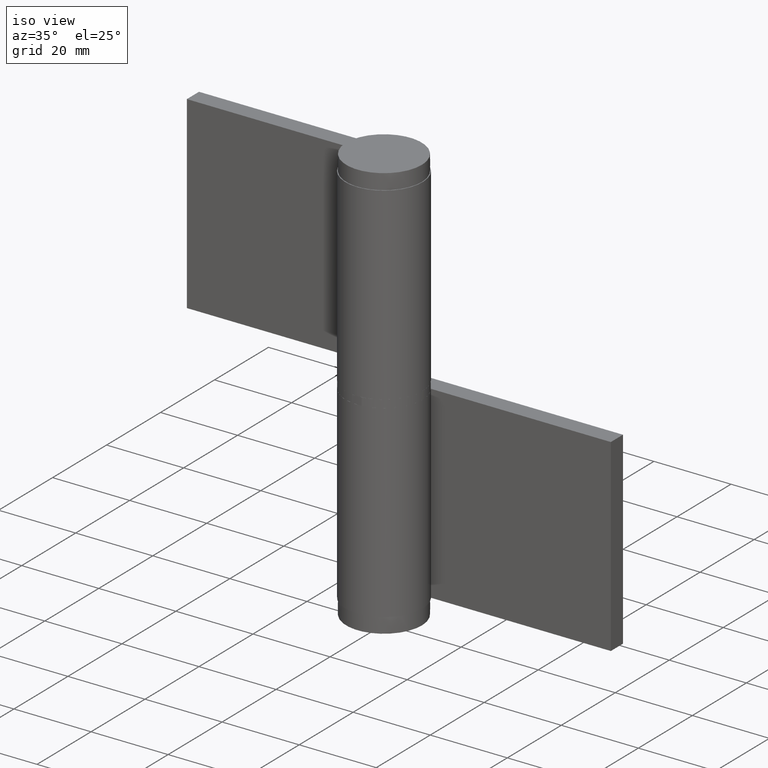
[diagram: clean part render]
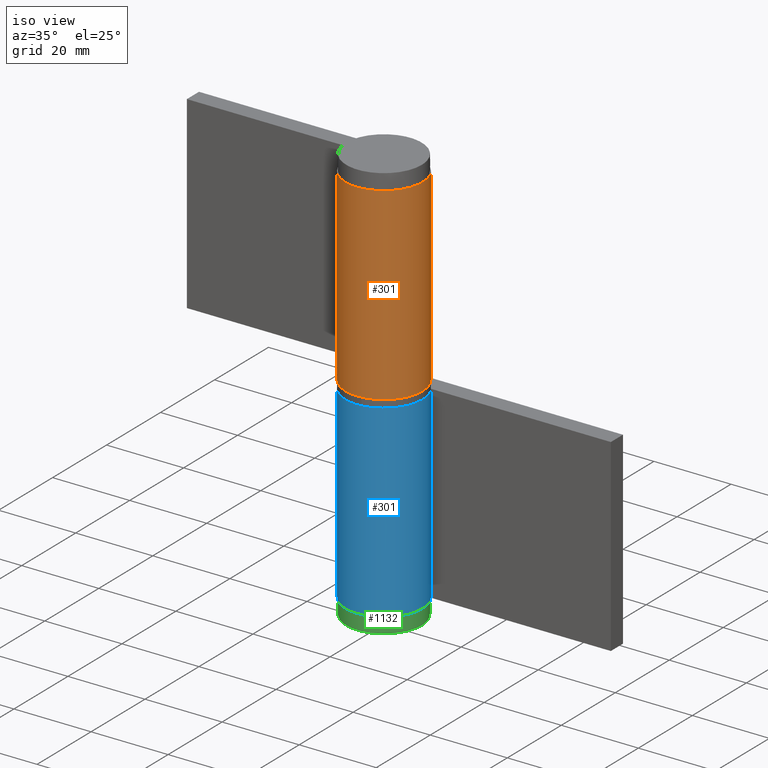
[diagram: same view with three faces highlighted in distinct colors, each labeled with its STEP entity id]
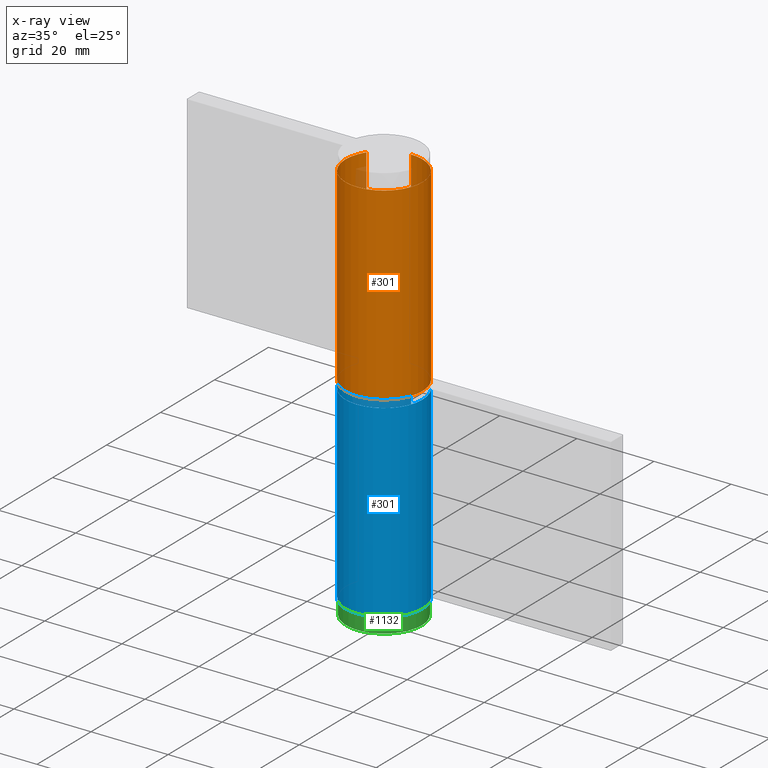
[diagram: x-ray of the same camera — body ghosted, the three highlighted faces saturated]
A machine part, iso view with three faces highlighted in distinct colors.
The next image is the same camera in x-ray (body ghosted, the three faces saturated) — at least one of them is partly hidden behind the body in this view.
Their STEP definitions:

[orange] entity #301 — the highlighted face is a freeform B-spline surface patch.
#86=CARTESIAN_POINT('',(8.384360440725340,5.450000000000000,0.0));
#87=VERTEX_POINT('',#86);
#93=CARTESIAN_POINT('',(0.0,10.0,0.0));
#94=VERTEX_POINT('',#93);
#95=CARTESIAN_POINT('',(8.384360440725336,5.450000000000003,0.0));
#96=CARTESIAN_POINT('',(12.623722496663076,-1.071897158847048,0.0));
#97=CARTESIAN_POINT('',(7.345416193928744,-6.785636369418080,0.0));
#98=CARTESIAN_POINT('',(2.067109891194402,-12.499375579989119,0.0));
#99=CARTESIAN_POINT('',(-4.769696007084729,-8.789197915623474,0.0));
#100=CARTESIAN_POINT('',(-11.606501905363862,-5.079020251257827,0.0));
#101=CARTESIAN_POINT('',(-9.692573939780772,2.460489874371092,0.0));
#102=CARTESIAN_POINT('',(-7.778645974197686,10.0,0.0));
#103=CARTESIAN_POINT('',(0.0,10.0,0.0));
#111=(BOUNDED_CURVE()B_SPLINE_CURVE(2,(#95,#96,#97,#98,#99,#100,#101,#102,#103),.UNSPECIFIED.,.F.,.U.)B_SPLINE_CURVE_WITH_KNOTS((3,2,2,2,3),(0.0,0.250000000000000,0.500000000000000,0.750000000000000,1.0),.UNSPECIFIED.)CURVE()GEOMETRIC_REPRESENTATION_ITEM()RATIONAL_B_SPLINE_CURVE((1.0,0.789319006307687,1.0,0.789319006307687,1.0,0.789319006307687,1.0,0.789319006307687,1.0))REPRESENTATION_ITEM(''));
#112=EDGE_CURVE('',#87,#94,#111,.T.);
#136=CARTESIAN_POINT('',(0.0,10.0,49.0));
#137=VERTEX_POINT('',#136);
#143=CARTESIAN_POINT('',(8.384360440725340,5.450000000000000,49.0));
#144=VERTEX_POINT('',#143);
#145=CARTESIAN_POINT('',(8.384360440725336,5.450000000000003,49.0));
#146=CARTESIAN_POINT('',(12.623722496663076,-1.071897158847048,49.0));
#147=CARTESIAN_POINT('',(7.345416193928744,-6.785636369418080,49.0));
#148=CARTESIAN_POINT('',(2.067109891194402,-12.499375579989119,49.0));
#149=CARTESIAN_POINT('',(-4.769696007084729,-8.789197915623474,49.0));
#150=CARTESIAN_POINT('',(-11.606501905363862,-5.079020251257827,49.0));
#151=CARTESIAN_POINT('',(-9.692573939780772,2.460489874371092,49.0));
#152=CARTESIAN_POINT('',(-7.778645974197686,10.0,49.0));
#153=CARTESIAN_POINT('',(0.0,10.0,49.0));
#161=(BOUNDED_CURVE()B_SPLINE_CURVE(2,(#145,#146,#147,#148,#149,#150,#151,#152,#153),.UNSPECIFIED.,.F.,.U.)B_SPLINE_CURVE_WITH_KNOTS((3,2,2,2,3),(0.0,0.250000000000000,0.500000000000000,0.750000000000000,1.0),.UNSPECIFIED.)CURVE()GEOMETRIC_REPRESENTATION_ITEM()RATIONAL_B_SPLINE_CURVE((1.0,0.789319006307687,1.0,0.789319006307687,1.0,0.789319006307687,1.0,0.789319006307687,1.0))REPRESENTATION_ITEM(''));
#162=EDGE_CURVE('',#144,#137,#161,.T.);
#261=CARTESIAN_POINT('',(8.384360440725340,5.450000000000000,49.0));
#262=CARTESIAN_POINT('',(8.384360440725340,5.450000000000000,0.0));
#263=QUASI_UNIFORM_CURVE('',1,(#261,#262),.UNSPECIFIED.,.F.,.U.);
#264=EDGE_CURVE('',#144,#87,#263,.T.);
#269=CARTESIAN_POINT('',(0.087265354983731,9.999619230641709,50.225000000000009));
#270=CARTESIAN_POINT('',(0.087265354983731,9.999619230641709,-1.255625000000002));
#271=CARTESIAN_POINT('',(-12.334946620419215,10.108026232219819,50.225000000000009));
#272=CARTESIAN_POINT('',(-12.334946620419215,10.108026232219819,-1.255625000000002));
#273=CARTESIAN_POINT('',(-9.787482521324137,-2.050654991648877,50.225000000000009));
#274=CARTESIAN_POINT('',(-9.787482521324137,-2.050654991648877,-1.255625000000002));
#275=CARTESIAN_POINT('',(-7.240018422229057,-14.209336215517574,50.225000000000009));
#276=CARTESIAN_POINT('',(-7.240018422229057,-14.209336215517574,-1.255625000000002));
#277=CARTESIAN_POINT('',(4.093923145260922,-9.123584453530139,50.225000000000009));
#278=CARTESIAN_POINT('',(4.093923145260922,-9.123584453530139,-1.255625000000002));
#279=CARTESIAN_POINT('',(15.427864712750901,-4.037832691542703,50.225000000000009));
#280=CARTESIAN_POINT('',(15.427864712750901,-4.037832691542703,-1.255625000000002));
#281=CARTESIAN_POINT('',(8.038568606172175,5.948227867513404,50.225000000000009));
#282=CARTESIAN_POINT('',(8.038568606172175,5.948227867513404,-1.255625000000002));
#290=(BOUNDED_SURFACE()B_SPLINE_SURFACE(1,2,((#269,#271,#273,#275,#277,#279,#281),(#270,#272,#274,#276,#278,#280,#282)),.UNSPECIFIED.,.F.,.F.,.U.)B_SPLINE_SURFACE_WITH_KNOTS((2,2),(3,2,2,3),(0.0,51.480625000000011),(0.0,19.150484318994121,38.300968637988248,57.451452956982372),.UNSPECIFIED.)GEOMETRIC_REPRESENTATION_ITEM()RATIONAL_B_SPLINE_SURFACE(((1.0,0.627057105746662,1.0,0.627057105746662,1.0,0.627057105746662,1.0),(1.0,0.627057105746662,1.0,0.627057105746662,1.0,0.627057105746662,1.0)))REPRESENTATION_ITEM('')SURFACE());
#291=ORIENTED_EDGE('',*,*,#112,.F.);
#292=ORIENTED_EDGE('',*,*,#264,.F.);
#293=ORIENTED_EDGE('',*,*,#162,.T.);
#294=CARTESIAN_POINT('',(0.0,10.0,49.0));
#295=CARTESIAN_POINT('',(0.0,10.0,0.0));
#296=QUASI_UNIFORM_CURVE('',1,(#294,#295),.UNSPECIFIED.,.F.,.U.);
#297=EDGE_CURVE('',#137,#94,#296,.T.);
#298=ORIENTED_EDGE('',*,*,#297,.T.);
#299=EDGE_LOOP('',(#291,#292,#293,#298));
#300=FACE_OUTER_BOUND('',#299,.T.);
#301=ADVANCED_FACE('',(#300),#290,.T.);

[blue] entity #301 — the highlighted face is a freeform B-spline surface patch.
#86=CARTESIAN_POINT('',(8.384360440725340,5.450000000000000,0.0));
#87=VERTEX_POINT('',#86);
#93=CARTESIAN_POINT('',(0.0,10.0,0.0));
#94=VERTEX_POINT('',#93);
#95=CARTESIAN_POINT('',(8.384360440725336,5.450000000000003,0.0));
#96=CARTESIAN_POINT('',(12.623722496663076,-1.071897158847048,0.0));
#97=CARTESIAN_POINT('',(7.345416193928744,-6.785636369418080,0.0));
#98=CARTESIAN_POINT('',(2.067109891194402,-12.499375579989119,0.0));
#99=CARTESIAN_POINT('',(-4.769696007084729,-8.789197915623474,0.0));
#100=CARTESIAN_POINT('',(-11.606501905363862,-5.079020251257827,0.0));
#101=CARTESIAN_POINT('',(-9.692573939780772,2.460489874371092,0.0));
#102=CARTESIAN_POINT('',(-7.778645974197686,10.0,0.0));
#103=CARTESIAN_POINT('',(0.0,10.0,0.0));
#111=(BOUNDED_CURVE()B_SPLINE_CURVE(2,(#95,#96,#97,#98,#99,#100,#101,#102,#103),.UNSPECIFIED.,.F.,.U.)B_SPLINE_CURVE_WITH_KNOTS((3,2,2,2,3),(0.0,0.250000000000000,0.500000000000000,0.750000000000000,1.0),.UNSPECIFIED.)CURVE()GEOMETRIC_REPRESENTATION_ITEM()RATIONAL_B_SPLINE_CURVE((1.0,0.789319006307687,1.0,0.789319006307687,1.0,0.789319006307687,1.0,0.789319006307687,1.0))REPRESENTATION_ITEM(''));
#112=EDGE_CURVE('',#87,#94,#111,.T.);
#136=CARTESIAN_POINT('',(0.0,10.0,49.0));
#137=VERTEX_POINT('',#136);
#143=CARTESIAN_POINT('',(8.384360440725340,5.450000000000000,49.0));
#144=VERTEX_POINT('',#143);
#145=CARTESIAN_POINT('',(8.384360440725336,5.450000000000003,49.0));
#146=CARTESIAN_POINT('',(12.623722496663076,-1.071897158847048,49.0));
#147=CARTESIAN_POINT('',(7.345416193928744,-6.785636369418080,49.0));
#148=CARTESIAN_POINT('',(2.067109891194402,-12.499375579989119,49.0));
#149=CARTESIAN_POINT('',(-4.769696007084729,-8.789197915623474,49.0));
#150=CARTESIAN_POINT('',(-11.606501905363862,-5.079020251257827,49.0));
#151=CARTESIAN_POINT('',(-9.692573939780772,2.460489874371092,49.0));
#152=CARTESIAN_POINT('',(-7.778645974197686,10.0,49.0));
#153=CARTESIAN_POINT('',(0.0,10.0,49.0));
#161=(BOUNDED_CURVE()B_SPLINE_CURVE(2,(#145,#146,#147,#148,#149,#150,#151,#152,#153),.UNSPECIFIED.,.F.,.U.)B_SPLINE_CURVE_WITH_KNOTS((3,2,2,2,3),(0.0,0.250000000000000,0.500000000000000,0.750000000000000,1.0),.UNSPECIFIED.)CURVE()GEOMETRIC_REPRESENTATION_ITEM()RATIONAL_B_SPLINE_CURVE((1.0,0.789319006307687,1.0,0.789319006307687,1.0,0.789319006307687,1.0,0.789319006307687,1.0))REPRESENTATION_ITEM(''));
#162=EDGE_CURVE('',#144,#137,#161,.T.);
#261=CARTESIAN_POINT('',(8.384360440725340,5.450000000000000,49.0));
#262=CARTESIAN_POINT('',(8.384360440725340,5.450000000000000,0.0));
#263=QUASI_UNIFORM_CURVE('',1,(#261,#262),.UNSPECIFIED.,.F.,.U.);
#264=EDGE_CURVE('',#144,#87,#263,.T.);
#269=CARTESIAN_POINT('',(0.087265354983731,9.999619230641709,50.225000000000009));
#270=CARTESIAN_POINT('',(0.087265354983731,9.999619230641709,-1.255625000000002));
#271=CARTESIAN_POINT('',(-12.334946620419215,10.108026232219819,50.225000000000009));
#272=CARTESIAN_POINT('',(-12.334946620419215,10.108026232219819,-1.255625000000002));
#273=CARTESIAN_POINT('',(-9.787482521324137,-2.050654991648877,50.225000000000009));
#274=CARTESIAN_POINT('',(-9.787482521324137,-2.050654991648877,-1.255625000000002));
#275=CARTESIAN_POINT('',(-7.240018422229057,-14.209336215517574,50.225000000000009));
#276=CARTESIAN_POINT('',(-7.240018422229057,-14.209336215517574,-1.255625000000002));
#277=CARTESIAN_POINT('',(4.093923145260922,-9.123584453530139,50.225000000000009));
#278=CARTESIAN_POINT('',(4.093923145260922,-9.123584453530139,-1.255625000000002));
#279=CARTESIAN_POINT('',(15.427864712750901,-4.037832691542703,50.225000000000009));
#280=CARTESIAN_POINT('',(15.427864712750901,-4.037832691542703,-1.255625000000002));
#281=CARTESIAN_POINT('',(8.038568606172175,5.948227867513404,50.225000000000009));
#282=CARTESIAN_POINT('',(8.038568606172175,5.948227867513404,-1.255625000000002));
#290=(BOUNDED_SURFACE()B_SPLINE_SURFACE(1,2,((#269,#271,#273,#275,#277,#279,#281),(#270,#272,#274,#276,#278,#280,#282)),.UNSPECIFIED.,.F.,.F.,.U.)B_SPLINE_SURFACE_WITH_KNOTS((2,2),(3,2,2,3),(0.0,51.480625000000011),(0.0,19.150484318994121,38.300968637988248,57.451452956982372),.UNSPECIFIED.)GEOMETRIC_REPRESENTATION_ITEM()RATIONAL_B_SPLINE_SURFACE(((1.0,0.627057105746662,1.0,0.627057105746662,1.0,0.627057105746662,1.0),(1.0,0.627057105746662,1.0,0.627057105746662,1.0,0.627057105746662,1.0)))REPRESENTATION_ITEM('')SURFACE());
#291=ORIENTED_EDGE('',*,*,#112,.F.);
#292=ORIENTED_EDGE('',*,*,#264,.F.);
#293=ORIENTED_EDGE('',*,*,#162,.T.);
#294=CARTESIAN_POINT('',(0.0,10.0,49.0));
#295=CARTESIAN_POINT('',(0.0,10.0,0.0));
#296=QUASI_UNIFORM_CURVE('',1,(#294,#295),.UNSPECIFIED.,.F.,.U.);
#297=EDGE_CURVE('',#137,#94,#296,.T.);
#298=ORIENTED_EDGE('',*,*,#297,.T.);
#299=EDGE_LOOP('',(#291,#292,#293,#298));
#300=FACE_OUTER_BOUND('',#299,.T.);
#301=ADVANCED_FACE('',(#300),#290,.T.);

[green] entity #1132 — the highlighted face is a freeform B-spline surface patch.
#1011=CARTESIAN_POINT('',(-9.797958972278190,0.0,-3.999999994388345));
#1012=VERTEX_POINT('',#1011);
#1013=CARTESIAN_POINT('',(9.797958972278190,0.0,-3.999999994388345));
#1014=VERTEX_POINT('',#1013);
#1015=CARTESIAN_POINT('',(-9.797958972278190,0.0,-3.999999994388345));
#1016=CARTESIAN_POINT('',(-9.797958972278190,9.797958972278190,-3.999999994388346));
#1017=CARTESIAN_POINT('',(0.0,9.797958972278190,-3.999999994388345));
#1018=CARTESIAN_POINT('',(9.797958972278190,9.797958972278190,-3.999999994388346));
#1019=CARTESIAN_POINT('',(9.797958972278190,0.0,-3.999999994388345));
#1027=(BOUNDED_CURVE()B_SPLINE_CURVE(2,(#1015,#1016,#1017,#1018,#1019),.UNSPECIFIED.,.F.,.U.)B_SPLINE_CURVE_WITH_KNOTS((3,2,3),(0.0,0.250000000000000,0.500000000000000),.UNSPECIFIED.)CURVE()GEOMETRIC_REPRESENTATION_ITEM()RATIONAL_B_SPLINE_CURVE((1.0,0.707106781186547,1.0,0.707106781186547,1.0))REPRESENTATION_ITEM(''));
#1028=EDGE_CURVE('',#1012,#1014,#1027,.T.);
#1030=CARTESIAN_POINT('',(9.797958972278190,0.0,-3.999999994388345));
#1031=CARTESIAN_POINT('',(9.797958972278190,-9.797958972278190,-3.999999994388346));
#1032=CARTESIAN_POINT('',(0.0,-9.797958972278190,-3.999999994388345));
#1033=CARTESIAN_POINT('',(-9.797958972278190,-9.797958972278190,-3.999999994388346));
#1034=CARTESIAN_POINT('',(-9.797958972278190,0.0,-3.999999994388345));
#1042=(BOUNDED_CURVE()B_SPLINE_CURVE(2,(#1030,#1031,#1032,#1033,#1034),.UNSPECIFIED.,.F.,.U.)B_SPLINE_CURVE_WITH_KNOTS((3,2,3),(0.500000000000000,0.750000000000000,1.0),.UNSPECIFIED.)CURVE()GEOMETRIC_REPRESENTATION_ITEM()RATIONAL_B_SPLINE_CURVE((1.0,0.707106781186547,1.0,0.707106781186547,1.0))REPRESENTATION_ITEM(''));
#1043=EDGE_CURVE('',#1014,#1012,#1042,.T.);
#1048=CARTESIAN_POINT('',(-5.998846486579745,5.998846486579745,3.294117647058823));
#1049=CARTESIAN_POINT('',(-5.562566742101217,7.416755656134957,2.181818181818182));
#1050=CARTESIAN_POINT('',(-2.428104530282278,9.712418121129113,0.380952380952381));
#1051=CARTESIAN_POINT('',(2.428104530282278,9.712418121129113,0.380952380952381));
#1052=CARTESIAN_POINT('',(5.562566742101217,7.416755656134957,2.181818181818182));
#1053=CARTESIAN_POINT('',(5.998846486579745,5.998846486579745,3.294117647058823));
#1054=CARTESIAN_POINT('',(-7.416755656134957,5.562566742101217,2.181818181818182));
#1055=CARTESIAN_POINT('',(-7.284313590846834,7.284313590846834,0.380952380952381));
#1056=CARTESIAN_POINT('',(-3.516565181788127,10.549695545364381,-3.034482758620689));
#1057=CARTESIAN_POINT('',(3.516565181788127,10.549695545364381,-3.034482758620689));
#1058=CARTESIAN_POINT('',(7.284313590846834,7.284313590846834,0.380952380952381));
#1059=CARTESIAN_POINT('',(7.416755656134957,5.562566742101217,2.181818181818182));
#1060=CARTESIAN_POINT('',(-9.712418121129113,2.428104530282278,0.380952380952381));
#1061=CARTESIAN_POINT('',(-10.549695545364381,3.516565181788127,-3.034482758620689));
#1062=CARTESIAN_POINT('',(-6.373774391990980,6.373774391990980,-12.0));
#1063=CARTESIAN_POINT('',(6.373774391990980,6.373774391990980,-12.0));
#1064=CARTESIAN_POINT('',(10.549695545364381,3.516565181788127,-3.034482758620689));
#1065=CARTESIAN_POINT('',(9.712418121129113,2.428104530282278,0.380952380952381));
#1066=CARTESIAN_POINT('',(-9.712418121129113,-2.428104530282278,0.380952380952381));
#1067=CARTESIAN_POINT('',(-10.549695545364381,-3.516565181788127,-3.034482758620689));
#1068=CARTESIAN_POINT('',(-6.373774391990980,-6.373774391990980,-12.0));
#1069=CARTESIAN_POINT('',(6.373774391990980,-6.373774391990980,-12.0));
#1070=CARTESIAN_POINT('',(10.549695545364381,-3.516565181788127,-3.034482758620689));
#1071=CARTESIAN_POINT('',(9.712418121129113,-2.428104530282278,0.380952380952381));
#1072=CARTESIAN_POINT('',(-7.416755656134957,-5.562566742101217,2.181818181818182));
#1073=CARTESIAN_POINT('',(-7.284313590846834,-7.284313590846834,0.380952380952381));
#1074=CARTESIAN_POINT('',(-3.516565181788127,-10.549695545364381,-3.034482758620689));
#1075=CARTESIAN_POINT('',(3.516565181788127,-10.549695545364381,-3.034482758620689));
#1076=CARTESIAN_POINT('',(7.284313590846834,-7.284313590846834,0.380952380952381));
#1077=CARTESIAN_POINT('',(7.416755656134957,-5.562566742101217,2.181818181818182));
#1078=CARTESIAN_POINT('',(-5.998846486579745,-5.998846486579745,3.294117647058823));
#1079=CARTESIAN_POINT('',(-5.562566742101217,-7.416755656134957,2.181818181818182));
#1080=CARTESIAN_POINT('',(-2.428104530282278,-9.712418121129113,0.380952380952381));
#1081=CARTESIAN_POINT('',(2.428104530282278,-9.712418121129113,0.380952380952381));
#1082=CARTESIAN_POINT('',(5.562566742101217,-7.416755656134957,2.181818181818182));
#1083=CARTESIAN_POINT('',(5.998846486579745,-5.998846486579745,3.294117647058823));
#1091=(BOUNDED_SURFACE()B_SPLINE_SURFACE(2,2,((#1048,#1054,#1060,#1066,#1072,#1078),(#1049,#1055,#1061,#1067,#1073,#1079),(#1050,#1056,#1062,#1068,#1074,#1080),(#1051,#1057,#1063,#1069,#1075,#1081),(#1052,#1058,#1064,#1070,#1076,#1082),(#1053,#1059,#1065,#1071,#1077,#1083)),.UNSPECIFIED.,.F.,.F.,.U.)B_SPLINE_SURFACE_WITH_KNOTS((3,1,1,1,3),(3,1,1,1,3),(0.0,10.595365223049940,21.190730446099881,31.786095669149820,42.381460892199762),(0.0,10.595365223049940,21.190730446099881,31.786095669149820,42.381460892199762),.UNSPECIFIED.)GEOMETRIC_REPRESENTATION_ITEM()RATIONAL_B_SPLINE_SURFACE(((4.250000000000001,3.437500000000001,2.625000000000000,2.625000000000000,3.437500000000001,4.250000000000001),(3.437500000000001,2.625000000000000,1.812500000000000,1.812500000000000,2.625000000000000,3.437500000000001),(2.625000000000000,1.812500000000000,1.0,1.0,1.812500000000000,2.625000000000000),(2.625000000000000,1.812500000000000,1.0,1.0,1.812500000000000,2.625000000000000),(3.437500000000001,2.625000000000000,1.812500000000000,1.812500000000000,2.625000000000000,3.437500000000001),(4.250000000000001,3.437500000000001,2.625000000000000,2.625000000000000,3.437500000000001,4.250000000000001)))REPRESENTATION_ITEM('')SURFACE());
#1092=CARTESIAN_POINT('',(-9.797958971132710,0.0,0.0));
#1093=VERTEX_POINT('',#1092);
#1094=CARTESIAN_POINT('',(9.797958971132710,0.0,0.0));
#1095=VERTEX_POINT('',#1094);
#1096=CARTESIAN_POINT('',(-9.797958971132710,0.0,0.0));
#1097=CARTESIAN_POINT('',(-9.797958971132710,9.797958971132710,0.0));
#1098=CARTESIAN_POINT('',(0.0,9.797958971132710,0.0));
#1099=CARTESIAN_POINT('',(9.797958971132710,9.797958971132710,0.0));
#1100=CARTESIAN_POINT('',(9.797958971132710,0.0,0.0));
#1108=(BOUNDED_CURVE()B_SPLINE_CURVE(2,(#1096,#1097,#1098,#1099,#1100),.UNSPECIFIED.,.F.,.U.)B_SPLINE_CURVE_WITH_KNOTS((3,2,3),(0.0,0.250000000000000,0.500000000000000),.UNSPECIFIED.)CURVE()GEOMETRIC_REPRESENTATION_ITEM()RATIONAL_B_SPLINE_CURVE((1.0,0.707106781186548,1.0,0.707106781186548,1.0))REPRESENTATION_ITEM(''));
#1109=EDGE_CURVE('',#1093,#1095,#1108,.T.);
#1110=ORIENTED_EDGE('',*,*,#1109,.T.);
#1111=CARTESIAN_POINT('',(9.797958971132710,0.0,0.0));
#1112=CARTESIAN_POINT('',(9.797958971132710,-9.797958971132710,0.0));
#1113=CARTESIAN_POINT('',(0.0,-9.797958971132710,0.0));
#1114=CARTESIAN_POINT('',(-9.797958971132710,-9.797958971132710,0.0));
#1115=CARTESIAN_POINT('',(-9.797958971132710,0.0,0.0));
#1123=(BOUNDED_CURVE()B_SPLINE_CURVE(2,(#1111,#1112,#1113,#1114,#1115),.UNSPECIFIED.,.F.,.U.)B_SPLINE_CURVE_WITH_KNOTS((3,2,3),(0.500000000000000,0.750000000000000,1.0),.UNSPECIFIED.)CURVE()GEOMETRIC_REPRESENTATION_ITEM()RATIONAL_B_SPLINE_CURVE((1.0,0.707106781186548,1.0,0.707106781186548,1.0))REPRESENTATION_ITEM(''));
#1124=EDGE_CURVE('',#1095,#1093,#1123,.T.);
#1125=ORIENTED_EDGE('',*,*,#1124,.T.);
#1126=EDGE_LOOP('',(#1110,#1125));
#1127=FACE_OUTER_BOUND('',#1126,.T.);
#1128=ORIENTED_EDGE('',*,*,#1028,.F.);
#1129=ORIENTED_EDGE('',*,*,#1043,.F.);
#1130=EDGE_LOOP('',(#1128,#1129));
#1131=FACE_BOUND('',#1130,.T.);
#1132=ADVANCED_FACE('',(#1127,#1131),#1091,.T.);